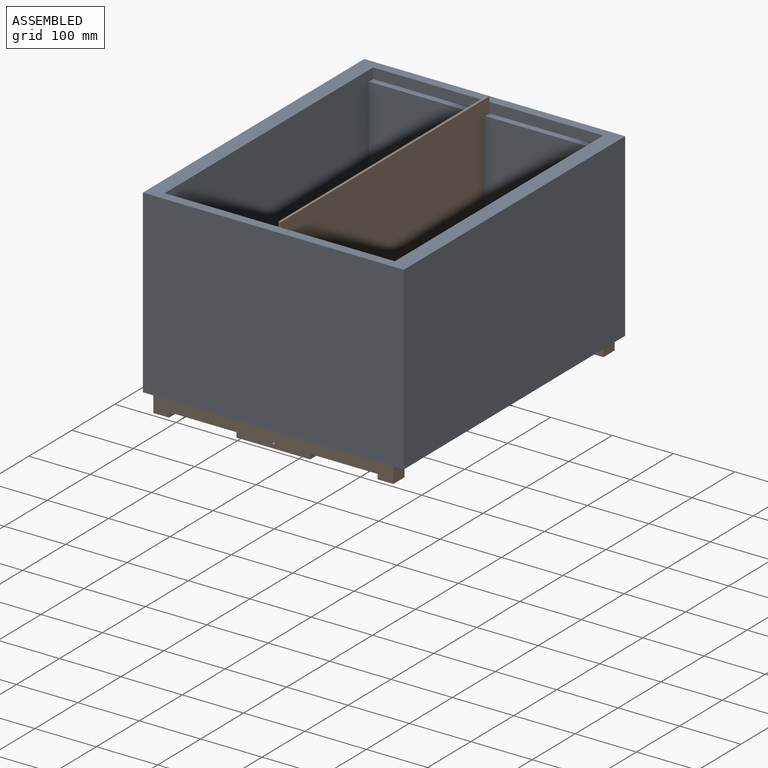
[diagram: assembled view]
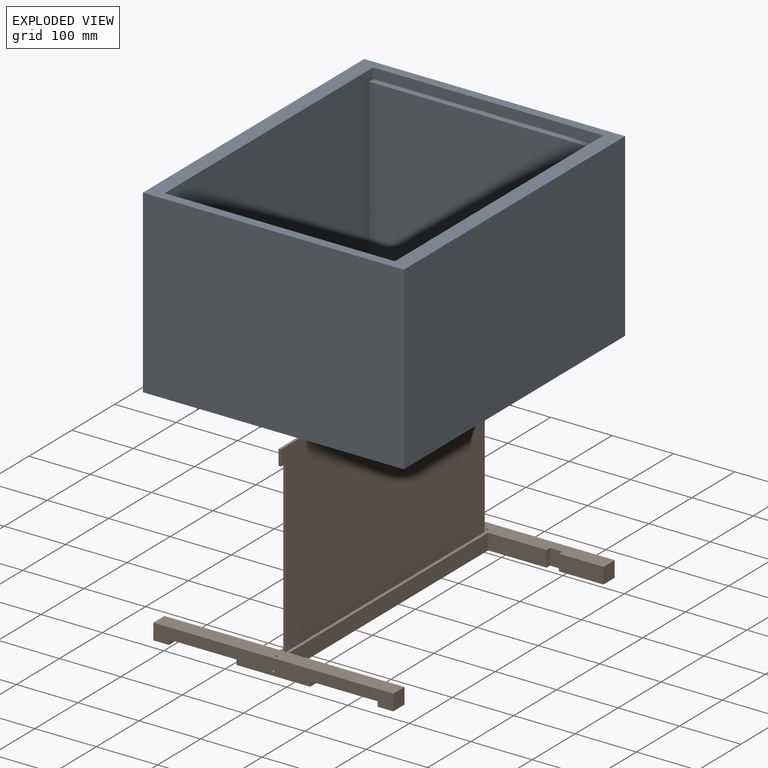
[diagram: exploded view]
GUIDED TOUR — MATED ASSEMBLY WITH SUBASSEMBLIES (Onshape document e3b92611a8aedb18f36058ed, AutoMate assembly e3b92611a8aedb18f36058ed_683d26e4b60991a36d9101ab_3c17a1db58b4eb7dbf458547_default)

This assembly has 8 component occurrences arranged in 2 top-level units: 0 individual components plus 2 subassemblies (S0, S1). The tour has two levels: first the top level, where each subassembly is treated as one rigid unit; then each subassembly is toured internally in its own section (nesting deeper than one subassembly level is flattened into its subassembly's section).

Components are labeled P0..P7 across the whole record; subassembly units are labeled S0..S1. A mate is a constraint between two units; its type names the relative motion it leaves free:
  FASTENED — locks the two components together rigidly (no relative motion).
Axis/direction vectors are unit vectors and 'through' points are millimeter coordinates, both in the assembly's world frame.

TOP-LEVEL MATES (between units; each subassembly's internal mates are listed in its own section)
  1. FASTENED "Fastened 1": S1 <-> S0, direction (0.000, 0.000, 1.000) through (-521.05, 214.26, 219.80) mm

TOP-LEVEL ASSEMBLY ORDER
  1. S0 — the base component [order heuristic]
  2. S1 [order heuristic]
Order-tag legend:
  [order heuristic] — this assembly is geometrically interlocked (no collision-free removal order exists), so components are listed in mate-graph order; insertion feasibility is not verified.

Of the 8 component occurrences, 5 carry the full construction recipe — the FeatureScript program that regenerates the part's solid from scratch; the rest are supplied as boundary geometry only. Each toured unit is shown spotlighted twice — assembled, then exploded with a leader line back to its socket (green = recipe-attached component, orange = geometry-only, blue = subassembly unit; the rest desaturated gray).
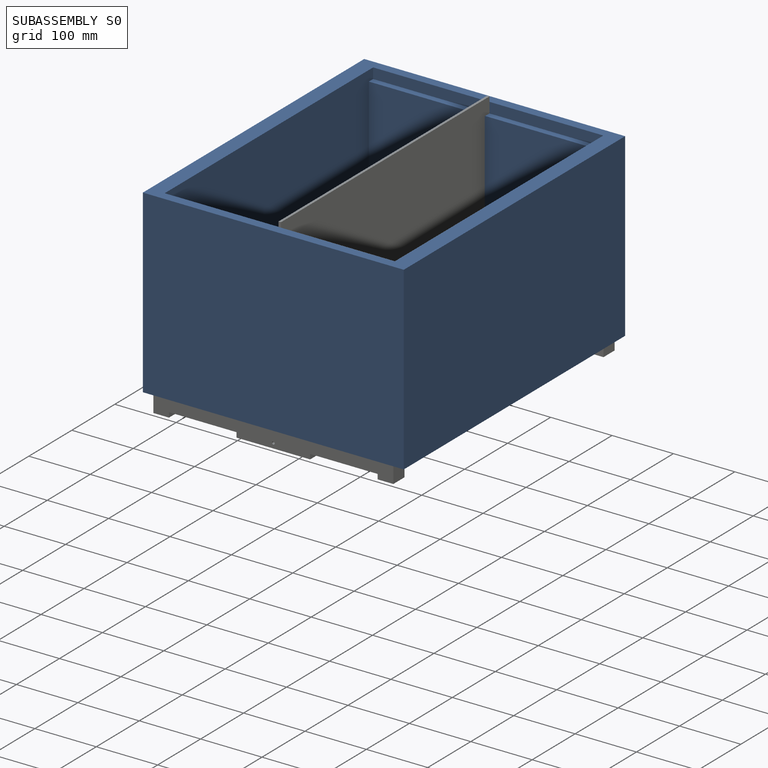
[diagram: subassembly S0 — assembled]
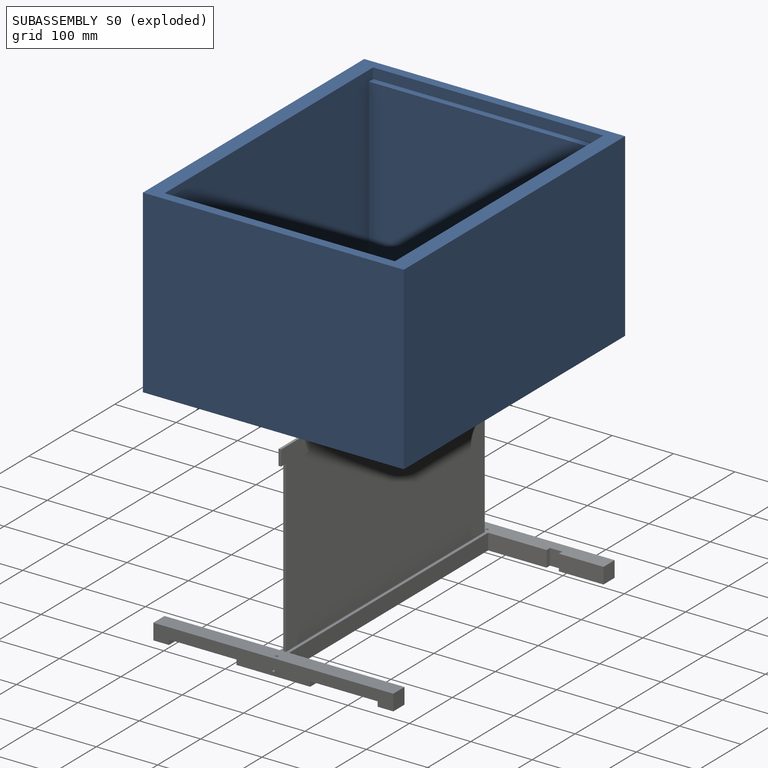
[diagram: subassembly S0 — exploded]
SUBASSEMBLY S0 — 4 components (P0, P4, P5, P7), of which 4 recipe-attached; toured below.
Held by: FASTENED mate "Fastened 1" to S1.
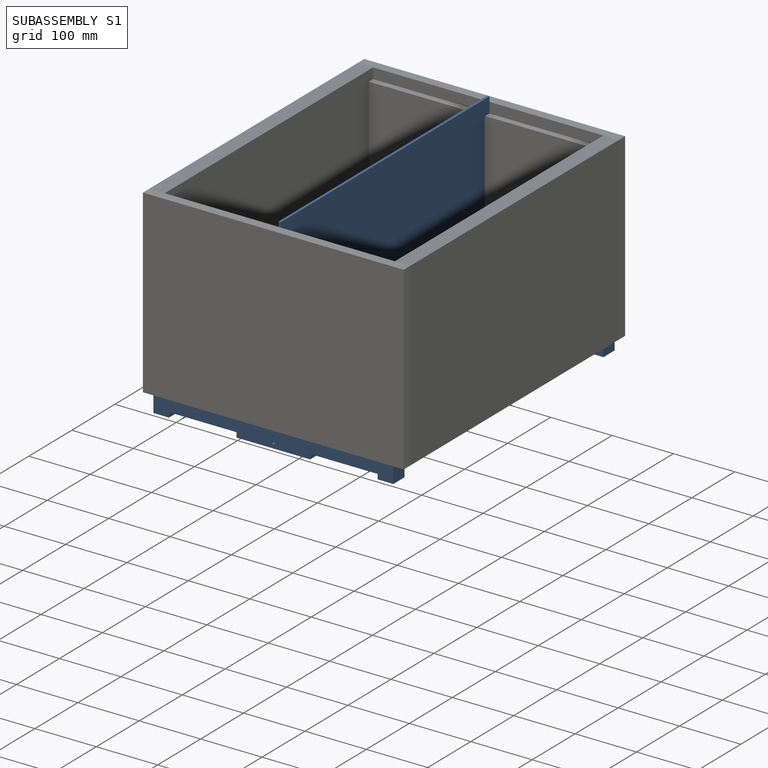
[diagram: subassembly S1 — assembled]
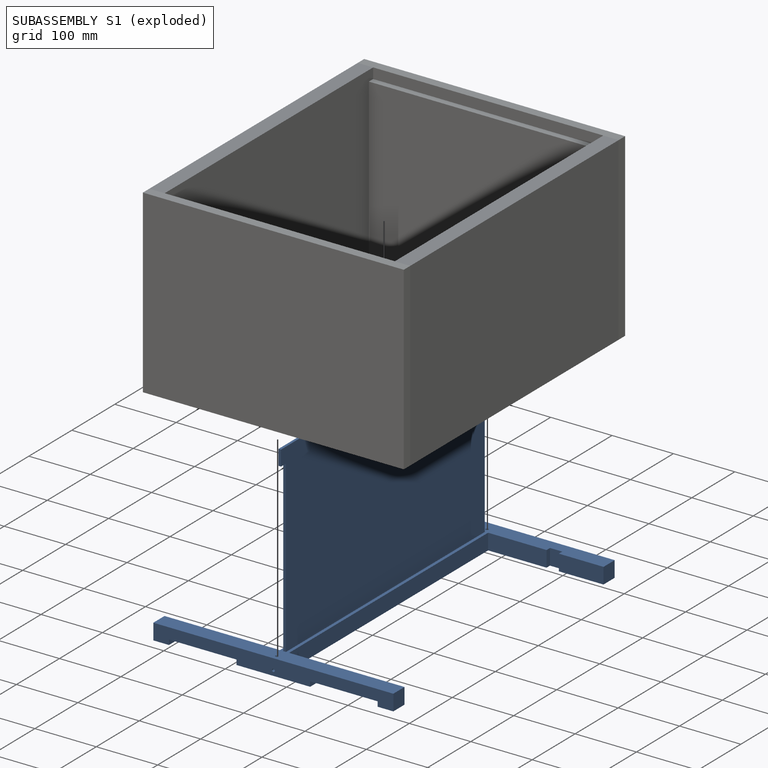
[diagram: subassembly S1 — exploded]
SUBASSEMBLY S1 — 4 components (P1, P2, P3, P6), of which 1 recipe-attached; toured below.
Held by: FASTENED mate "Fastened 1" to S0.
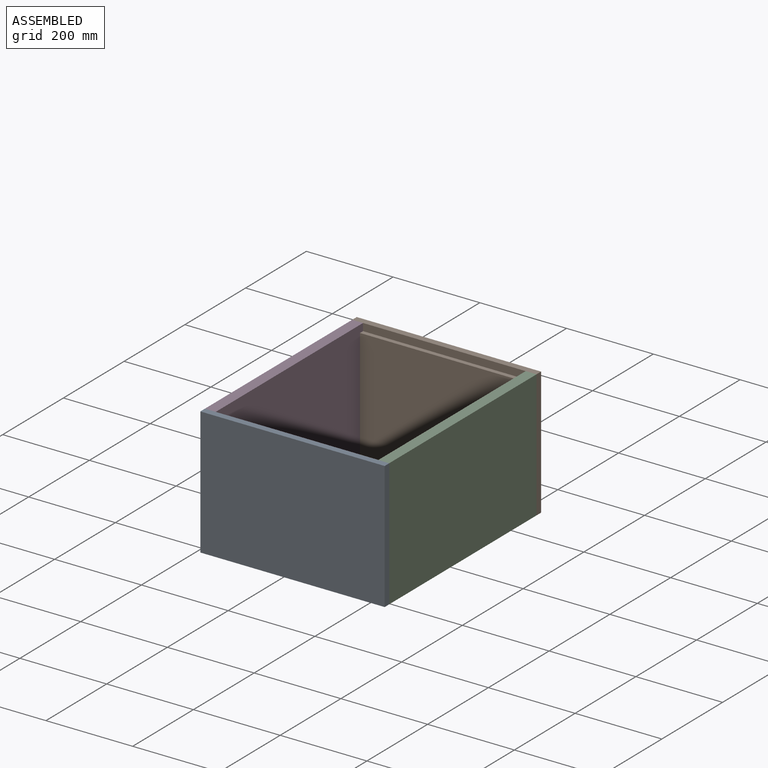
[diagram: subassembly S0 — assembled view]
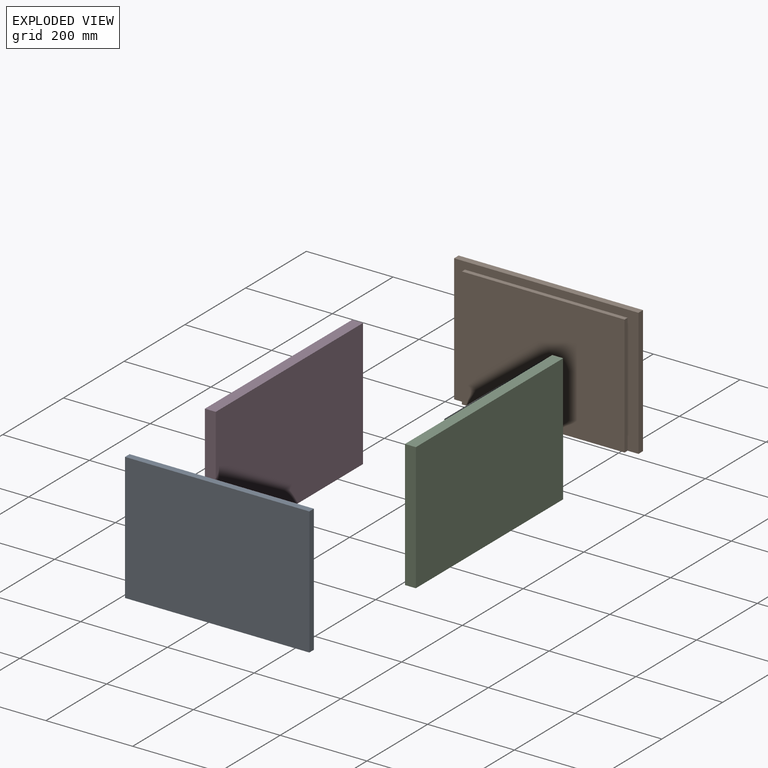
[diagram: subassembly S0 — exploded view]
SUBASSEMBLY S0 TOUR — 4 components, shown here in isolation at its own camera.

INTERNAL MATES
  1. FASTENED "Fastened 3": P5 <-> P4, direction (0.000, 0.000, -1.000) through (-321.05, 199.26, 219.80) mm
  2. FASTENED "Fastened 4": P0 <-> P5, direction (0.000, 0.000, -1.000) through (-321.05, -285.74, 219.80) mm
  3. FASTENED "Fastened 2": P7 <-> P4, direction (0.000, 0.000, -1.000) through (-721.05, 199.26, 219.80) mm
  4. FASTENED "Fastened 3": P5 <-> P4, direction (0.000, 0.000, -1.000) through (-321.05, 199.26, 219.80) mm
  5. FASTENED "Fastened 2": P7 <-> P4, direction (0.000, 0.000, -1.000) through (-721.05, 199.26, 219.80) mm
  6. FASTENED "Fastened 4": P0 <-> P5, direction (0.000, 0.000, -1.000) through (-321.05, -285.74, 219.80) mm

ASSEMBLY ORDER (within the subassembly)
  1. P7 — the base component [order verified]
  2. P0 [order verified]
  3. P5 [order verified]
  4. P4 [order verified]
(P0, P4 verified with a relaxed clearance tolerance: the source model stores slight part interference there.)
Order-tag legend:
  [order verified] — this step's position reverses a verified removal order: the component was checked to insert without passing through the ones already placed.
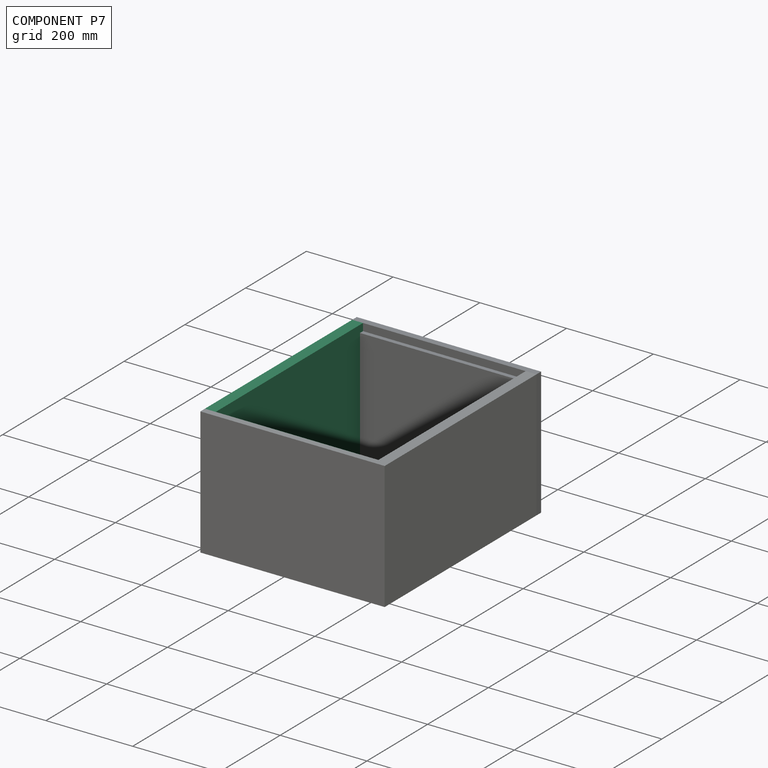
[diagram: component P7 — assembled]
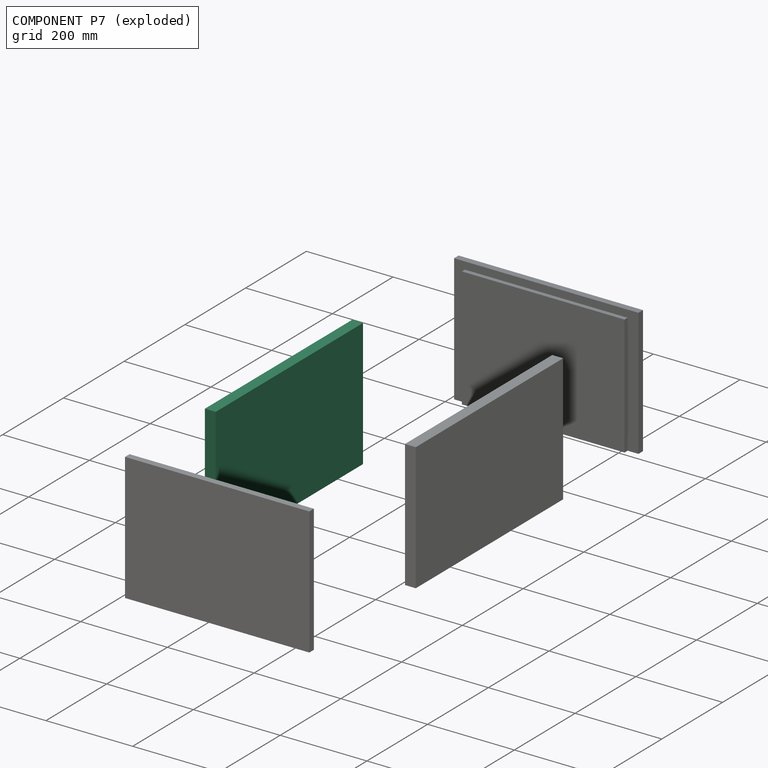
[diagram: component P7 — exploded]
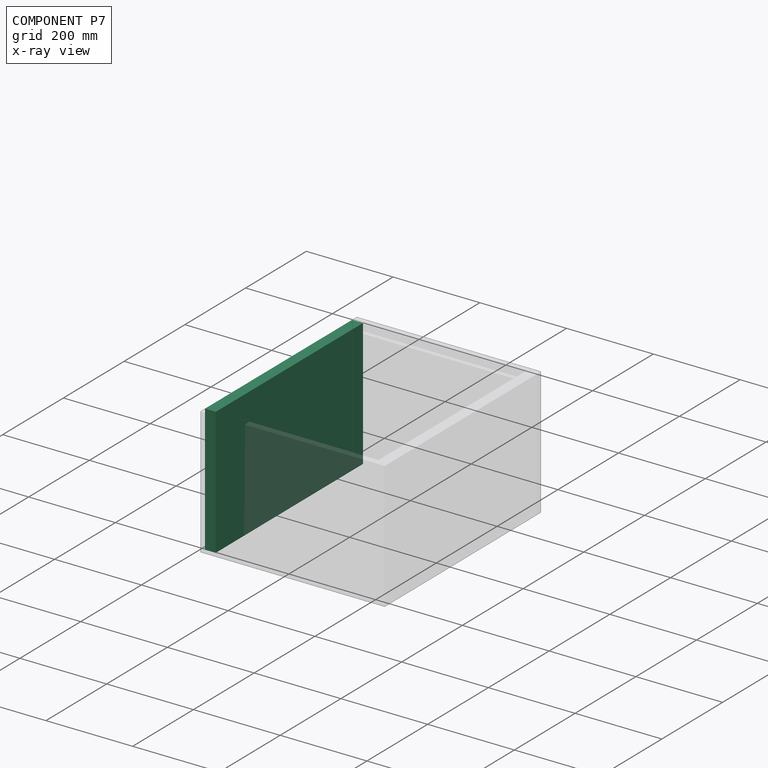
[diagram: component P7 — x-ray view]
COMPONENT P7 — same part as P5 (CADFS 00756730); its construction recipe is shown at P5.
Held by: FASTENED mate "Fastened 2" to P4; FASTENED mate "Fastened 2" to P4.
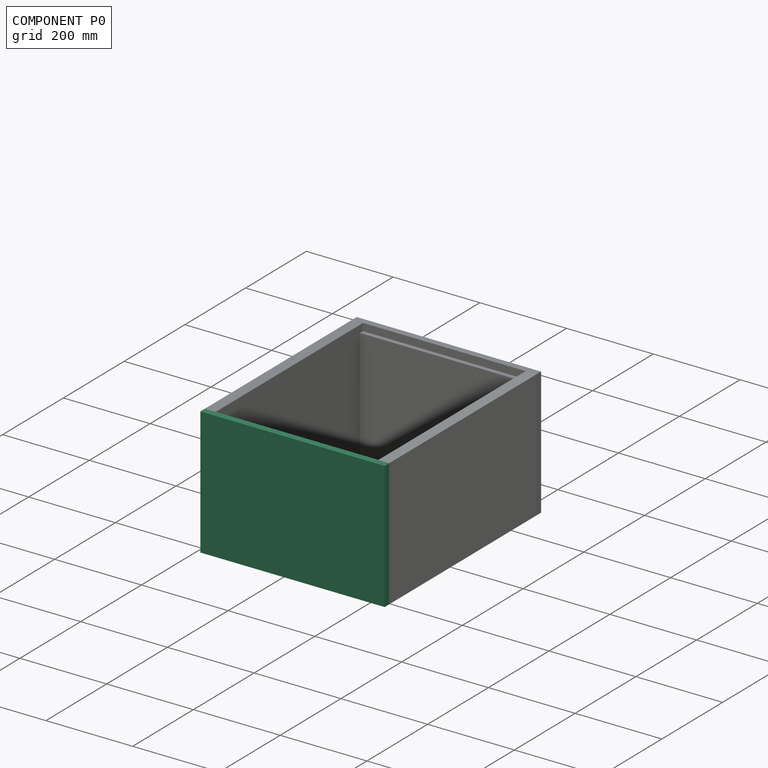
[diagram: component P0 — assembled]
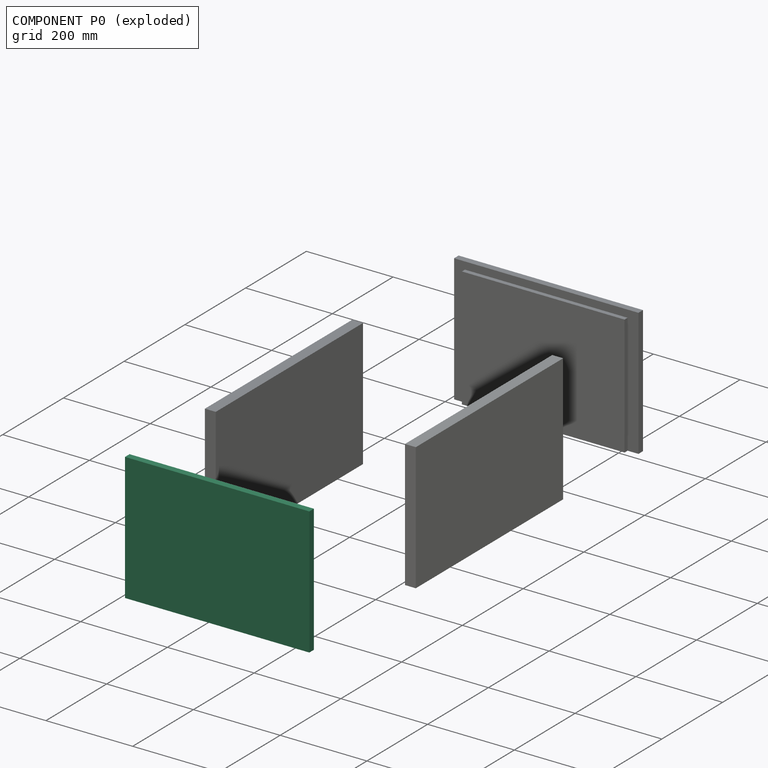
[diagram: component P0 — exploded]
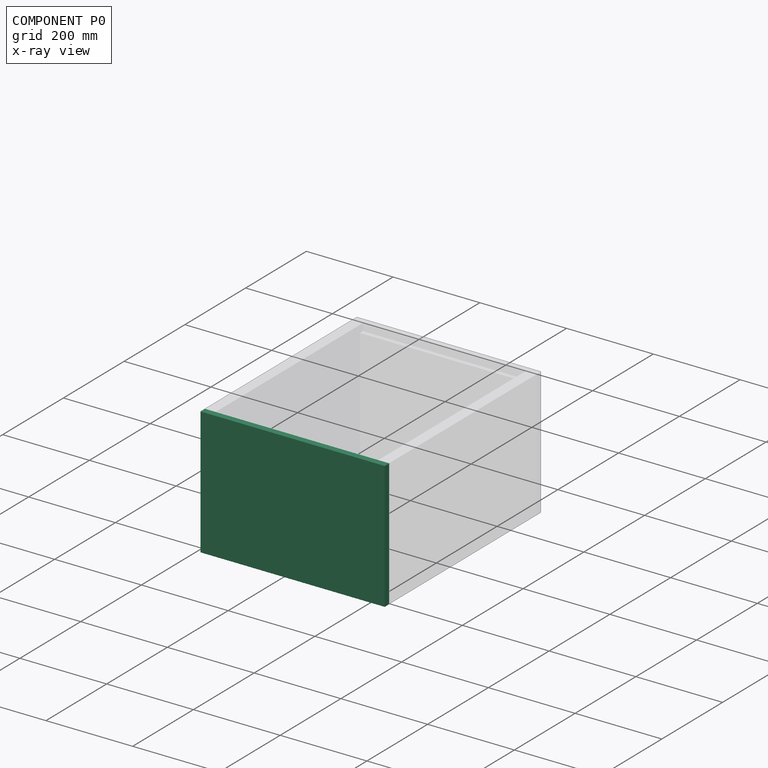
[diagram: component P0 — x-ray view]
COMPONENT P0 — recipe-attached (CADFS 00756731, mesh-verified: the recipe's output STEP matches this component's geometry to below the mesh-comparison resolution (tessellation chordal tolerance ~0.776 mm)).
Held by: FASTENED mate "Fastened 4" to P5; FASTENED mate "Fastened 4" to P5.
Construction recipe (FeatureScript — the CAD program that rebuilds this solid; sketch coordinates are in the units given by the * unit suffixes, e.g. mm):

FeatureScript 1913;
import(path : "onshape/std/geometry.fs", version : "1913.0");
import(path : "onshape/std/common.fs", version : "1913.0");
const mm = millimeter;
const VERTEX = EntityType.VERTEX;
const EDGE = EntityType.EDGE;
const FACE = EntityType.FACE;
const BODY = EntityType.BODY;
function v(x, y){return vector(x, y);}
function OD(order){return orderDisambiguation(order);}
function OSD(set){return originalSetDisambiguation(set);}
function TD(topology){return topologyDisambiguation(topology);}
function TDD(query){return trueDependencyDisambiguation(query);}
function sQuery(a, b, c) {return sketchEntityQuery(a, b, c);}

annotation { "Feature Type Name" : "Feature", "Feature Type Description" : "" }
export const myFeature = defineFeature(function(context is Context, id is Id, definition is map)
    precondition{}
    {
        {
            var Q0;
            Q0=qCreatedBy(makeId("Front.planeOp"),FACE);
            var sketch = newSketch(context, id + "F0", { "sketchPlane" : qUnion([Q0])});
            skLineSegment(sketch, "E0.bottom", {"start": v(-212.5, 294) * mm, "end": v(212.5, 294) * mm});
            skLineSegment(sketch, "E0.top", {"start": v(-212.5, 0) * mm, "end": v(212.5, 0) * mm});
            skLineSegment(sketch, "E0.left", {"start": v(-212.5, 294) * mm, "end": v(-212.5, 0) * mm});
            skLineSegment(sketch, "E0.right", {"start": v(212.5, 294) * mm, "end": v(212.5, 0) * mm});
            skSolve(sketch);
        }
        {
            var Q0;
            Q0 = qSketchRegion(id + "F0", true);
            extrude(context, id + "F1", {"entities" : qUnion([Q0]), "depth" : 15 * mm, "offsetDistance" : 25 * mm});
        }
        {
            var Q0;
            Q0=makeQuery(id+"F1.opExtrude","CAP_FACE",FACE,{"disambiguationData":[OSD([sQuery(id+"F0.wireOp",EDGE,"E0.bottom"),sQuery(id+"F0.wireOp",EDGE,"E0.top"),sQuery(id+"F0.wireOp",EDGE,"E0.left"),sQuery(id+"F0.wireOp",EDGE,"E0.right")])],"isStart":false});
            var sketch = newSketch(context, id + "F2", { "sketchPlane" : qUnion([Q0])});
            skLineSegment(sketch, "E1.bottom", {"start": v(-187.5, 277) * mm, "end": v(187.5, 277) * mm});
            skLineSegment(sketch, "E1.top", {"start": v(-187.5, 0) * mm, "end": v(187.5, 0) * mm});
            skLineSegment(sketch, "E1.left", {"start": v(-187.5, 277) * mm, "end": v(-187.5, 0) * mm});
            skLineSegment(sketch, "E1.right", {"start": v(187.5, 277) * mm, "end": v(187.5, 0) * mm});
            skSolve(sketch);
        }
        {
            var Q0;
            Q0 = qSketchRegion(id + "F2", true);
            extrude(context, id + "F3", {"entities" : qUnion([Q0]), "operationType" : NewBodyOperationType.ADD, "depth" : 10 * mm, "offsetDistance" : 25 * mm});
        }
    });
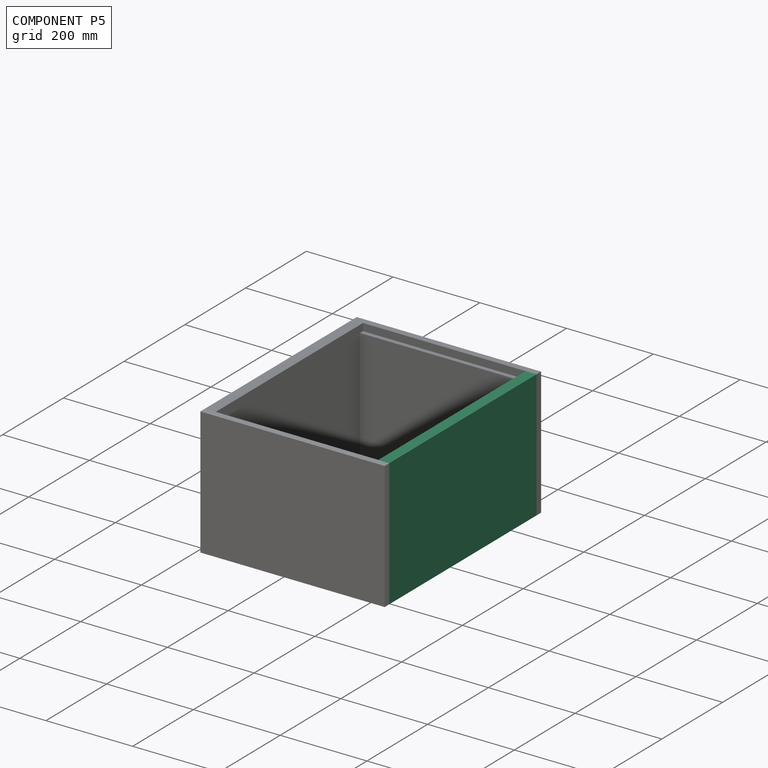
[diagram: component P5 — assembled]
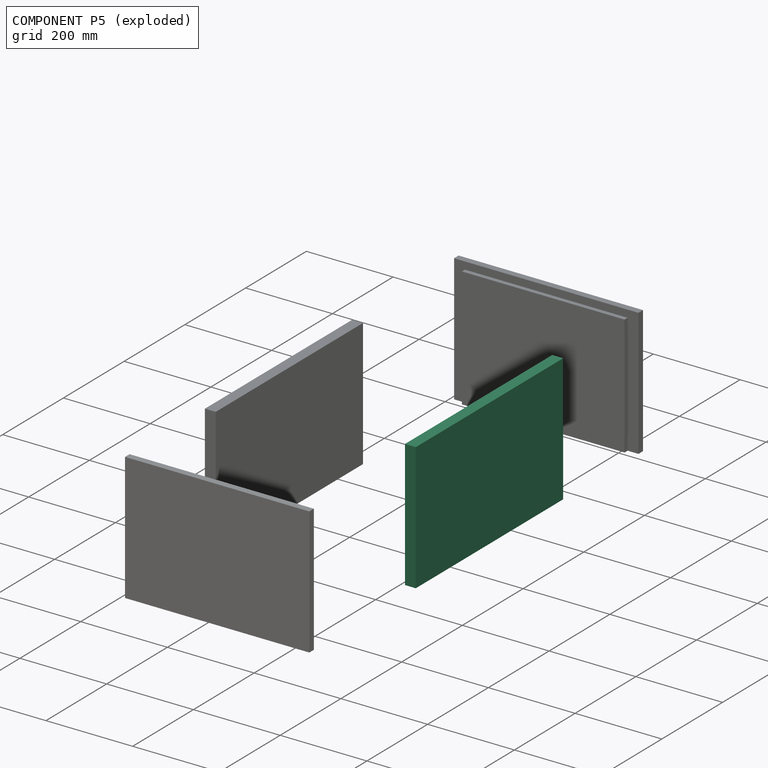
[diagram: component P5 — exploded]
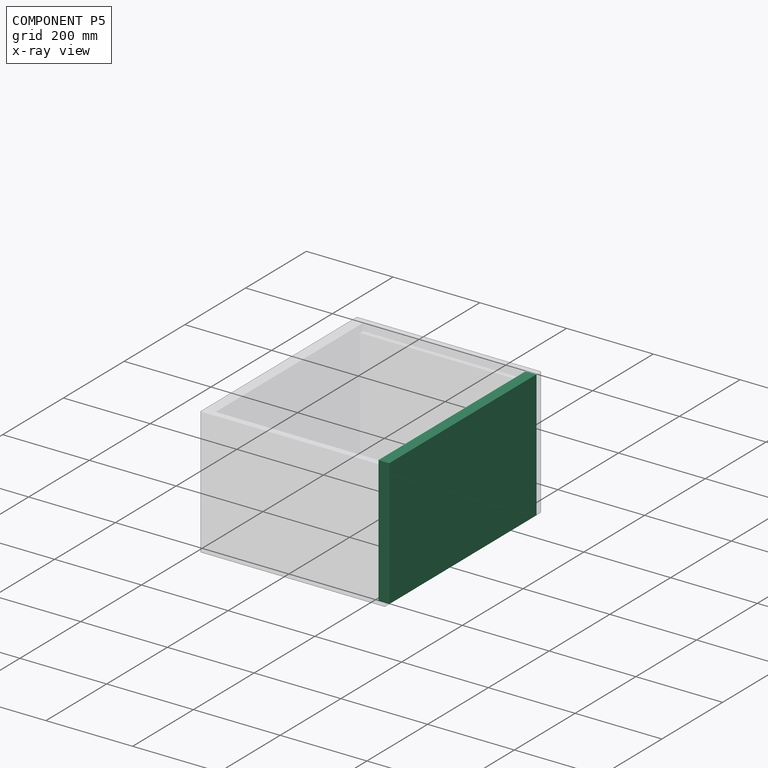
[diagram: component P5 — x-ray view]
COMPONENT P5 — recipe-attached (CADFS 00756730, mesh-verified: the recipe's output STEP matches this component's geometry to below the mesh-comparison resolution (tessellation chordal tolerance ~0.852 mm)).
Held by: FASTENED mate "Fastened 3" to P4; FASTENED mate "Fastened 4" to P0; FASTENED mate "Fastened 3" to P4; FASTENED mate "Fastened 4" to P0.
Construction recipe (FeatureScript — the CAD program that rebuilds this solid; sketch coordinates are in the units given by the * unit suffixes, e.g. mm):

FeatureScript 1913;
import(path : "onshape/std/geometry.fs", version : "1913.0");
import(path : "onshape/std/common.fs", version : "1913.0");
const mm = millimeter;
const VERTEX = EntityType.VERTEX;
const EDGE = EntityType.EDGE;
const FACE = EntityType.FACE;
const BODY = EntityType.BODY;
function v(x, y){return vector(x, y);}
function OD(order){return orderDisambiguation(order);}
function OSD(set){return originalSetDisambiguation(set);}
function TD(topology){return topologyDisambiguation(topology);}
function TDD(query){return trueDependencyDisambiguation(query);}
function sQuery(a, b, c) {return sketchEntityQuery(a, b, c);}

annotation { "Feature Type Name" : "Feature", "Feature Type Description" : "" }
export const myFeature = defineFeature(function(context is Context, id is Id, definition is map)
    precondition{}
    {
        {
            var Q0;
            Q0=qCreatedBy(makeId("Front.planeOp"),FACE);
            var sketch = newSketch(context, id + "F0", { "sketchPlane" : qUnion([Q0])});
            skLineSegment(sketch, "E0.bottom", {"start": v(-242.5, 294) * mm, "end": v(242.5, 294) * mm});
            skLineSegment(sketch, "E0.top", {"start": v(-242.5, 0) * mm, "end": v(242.5, 0) * mm});
            skLineSegment(sketch, "E0.left", {"start": v(-242.5, 294) * mm, "end": v(-242.5, 0) * mm});
            skLineSegment(sketch, "E0.right", {"start": v(242.5, 294) * mm, "end": v(242.5, 0) * mm});
            skSolve(sketch);
        }
        {
            var Q0;
            Q0 = qSketchRegion(id + "F0", true);
            extrude(context, id + "F1", {"entities" : qUnion([Q0]), "depth" : 25 * mm, "offsetDistance" : 25 * mm});
        }
    });
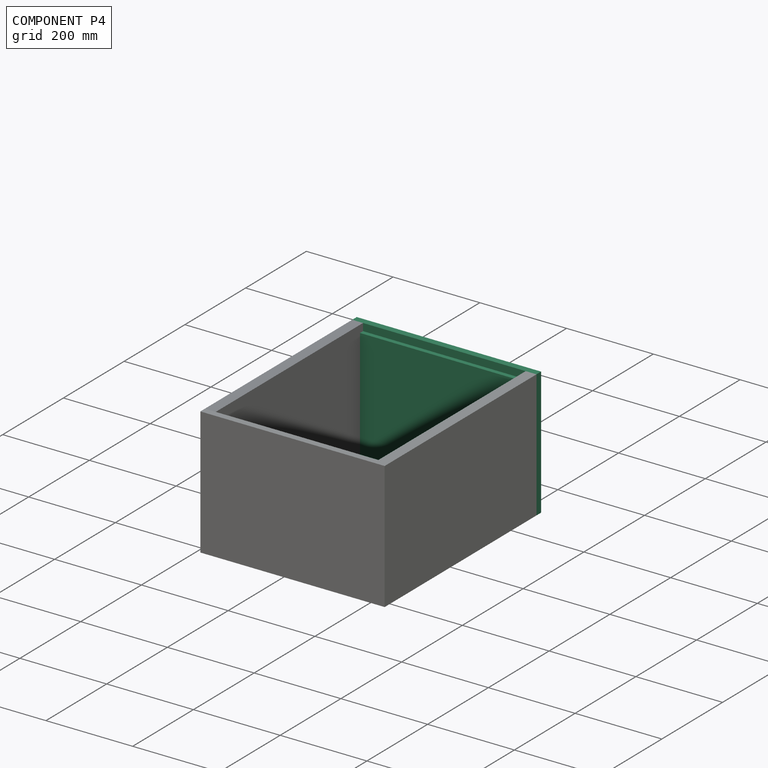
[diagram: component P4 — assembled]
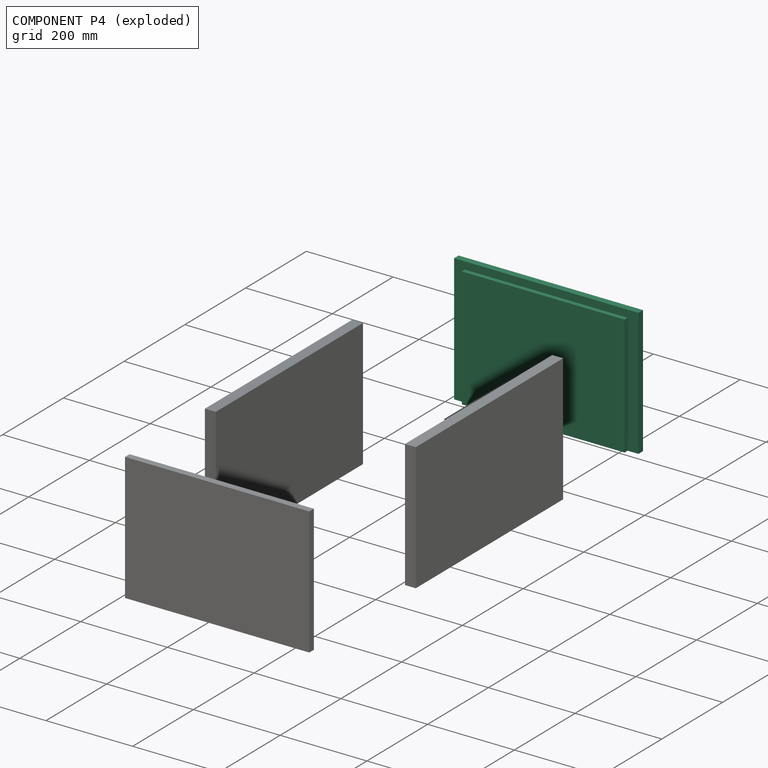
[diagram: component P4 — exploded]
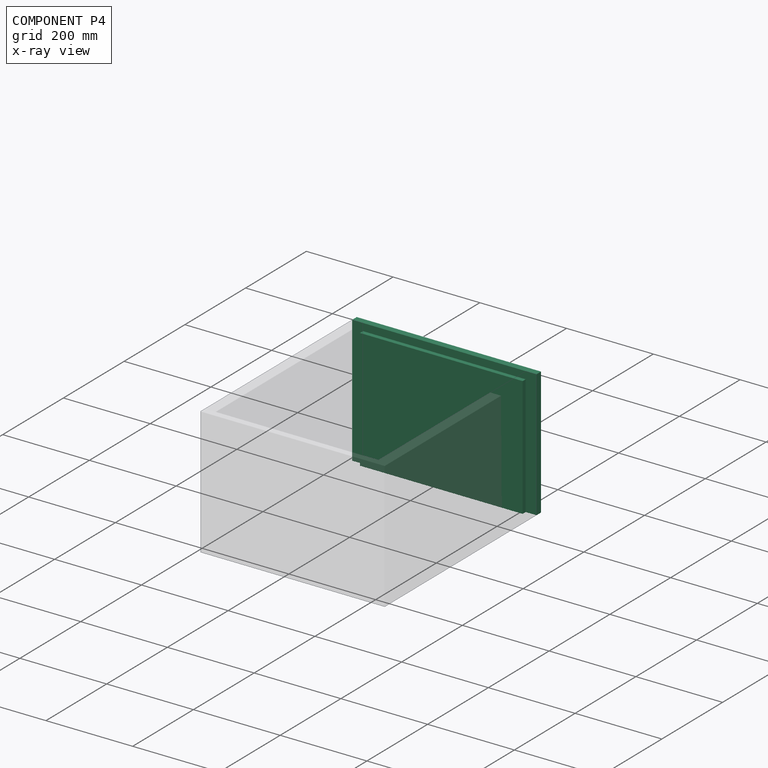
[diagram: component P4 — x-ray view]
COMPONENT P4 — same part as P0 (CADFS 00756731); its construction recipe is shown at P0.
Held by: FASTENED mate "Fastened 3" to P5; FASTENED mate "Fastened 2" to P7; FASTENED mate "Fastened 3" to P5; FASTENED mate "Fastened 2" to P7.
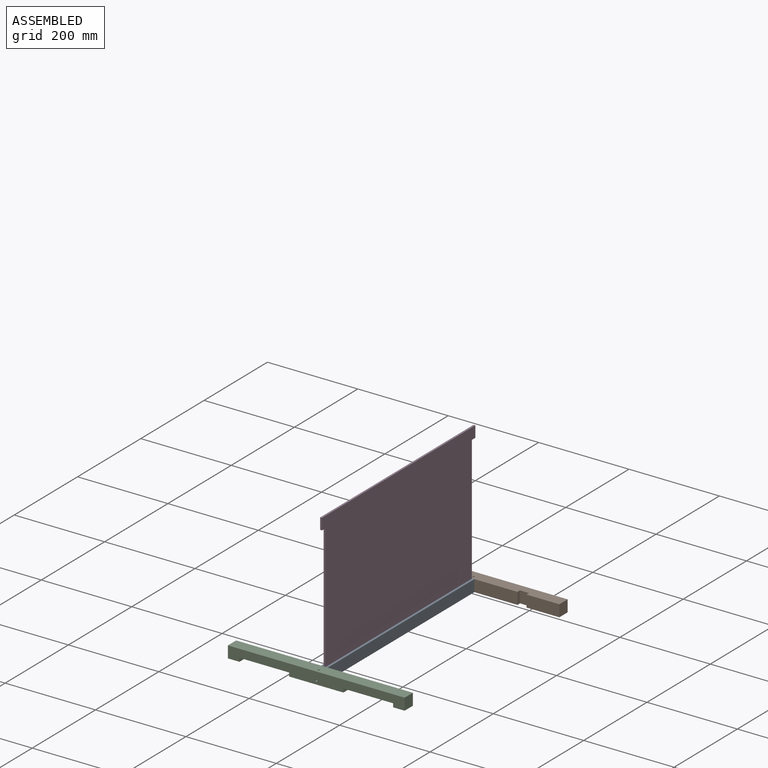
[diagram: subassembly S1 — assembled view]
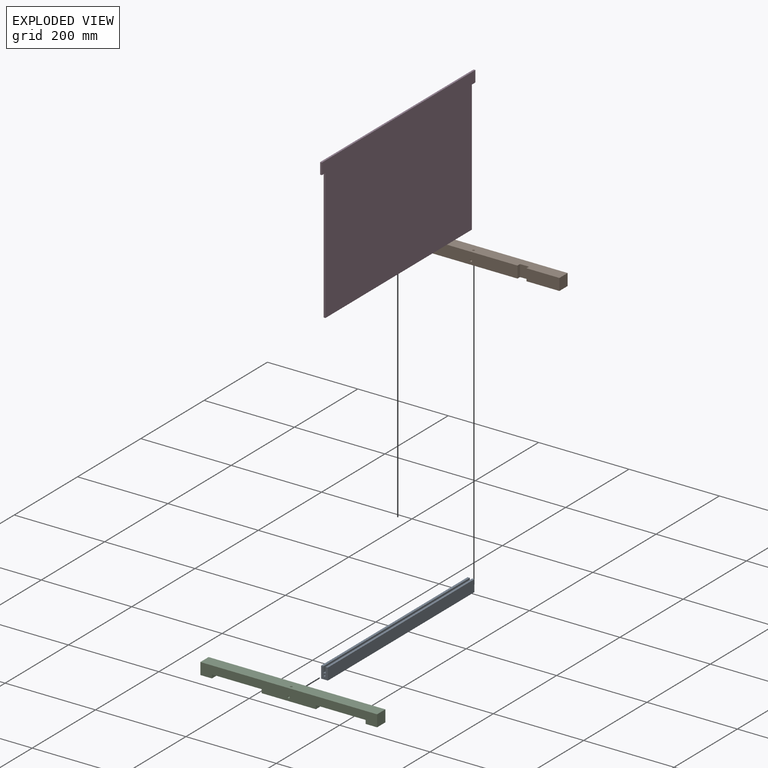
[diagram: subassembly S1 — exploded view]
SUBASSEMBLY S1 TOUR — 4 components, shown here in isolation at its own camera.

INTERNAL MATES
  1. FASTENED "Fastened 1": P2 <-> P1, direction (0.000, 0.000, -1.000) through (-521.05, 188.26, 193.80) mm
  2. FASTENED "Fastened 4": P6 <-> P1, direction (0.000, 0.000, -1.000) through (-521.05, -274.74, 206.80) mm
  3. FASTENED "Fastened 2": P1 <-> P3, direction (0.000, 0.000, -1.000) through (-521.05, -274.74, 193.80) mm
  4. FASTENED "Fastened 2": P1 <-> P3, direction (0.000, 0.000, -1.000) through (-521.05, -274.74, 193.80) mm
  5. FASTENED "Fastened 1": P2 <-> P1, direction (0.000, 0.000, -1.000) through (-521.05, 188.26, 193.80) mm
  6. FASTENED "Fastened 4": P6 <-> P1, direction (0.000, 0.000, -1.000) through (-521.05, -274.74, 206.80) mm

ASSEMBLY ORDER (within the subassembly)
  1. P1 — the base component [order verified]
  2. P6 [order verified]
  3. P3 [order verified]
  4. P2 [order verified]
Order-tag legend:
  [order verified] — this step's position reverses a verified removal order: the component was checked to insert without passing through the ones already placed.
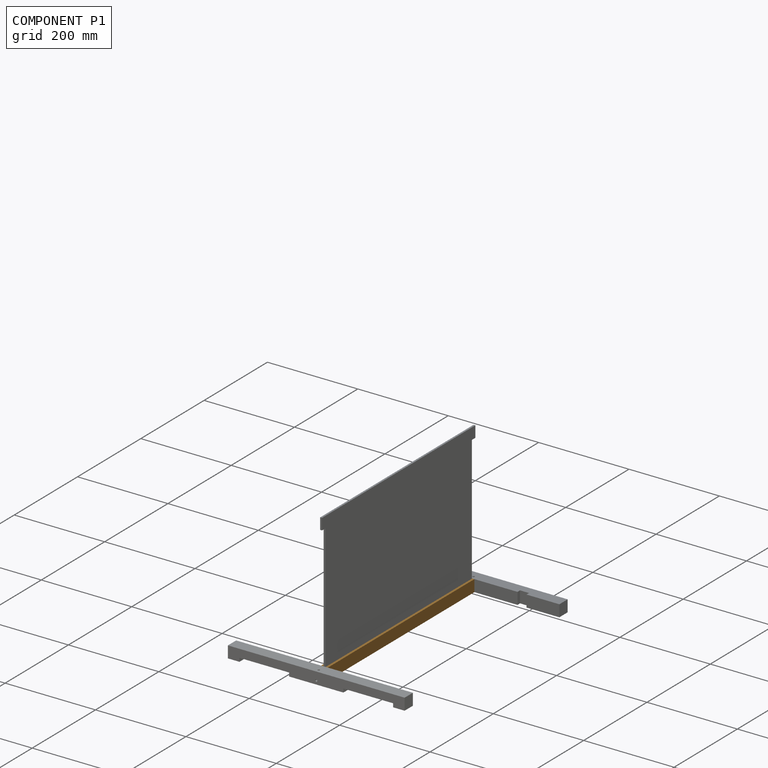
[diagram: component P1 — assembled]
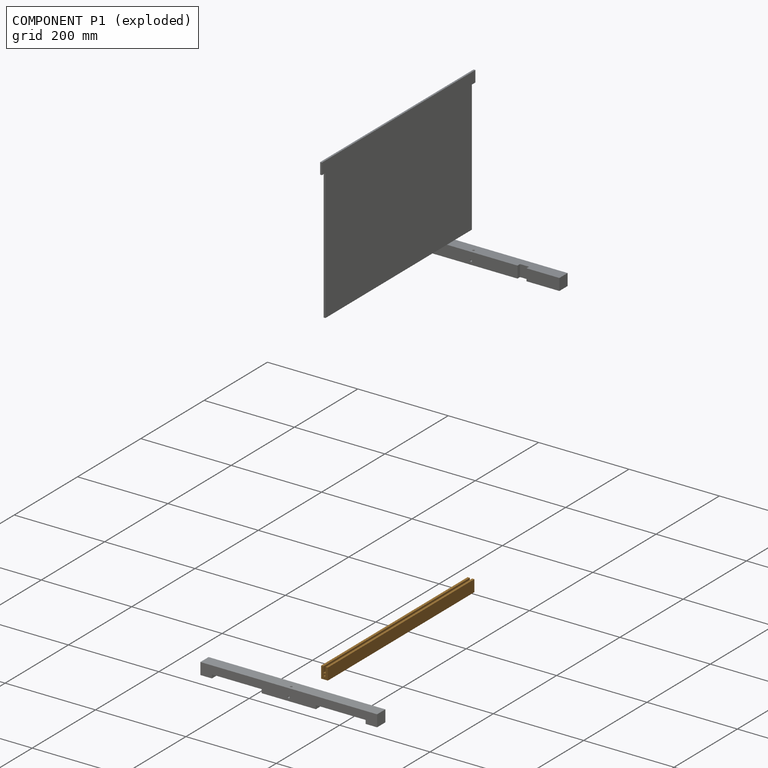
[diagram: component P1 — exploded]
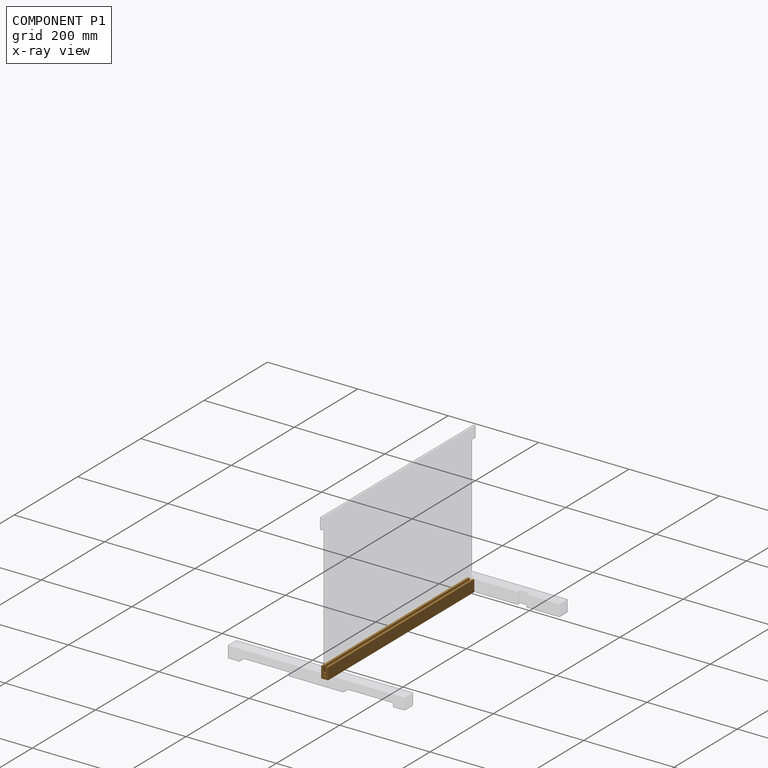
[diagram: component P1 — x-ray view]
COMPONENT P1 — geometry summary (no construction recipe available for this part):
  bounding box: 463.0 x 26.0 x 15.0 mm
  B-rep topology: 1 solid, 14 faces, 66 edges
  volume: 150088 mm^3 (83% of its bounding box)
  symmetry: 2-fold rotationally symmetric about the z axis; mirror-symmetric across its x mid-plane, y mid-plane
Held by: FASTENED mate "Fastened 1" to P2; FASTENED mate "Fastened 4" to P6; FASTENED mate "Fastened 2" to P3; FASTENED mate "Fastened 2" to P3; FASTENED mate "Fastened 1" to P2; FASTENED mate "Fastened 4" to P6.
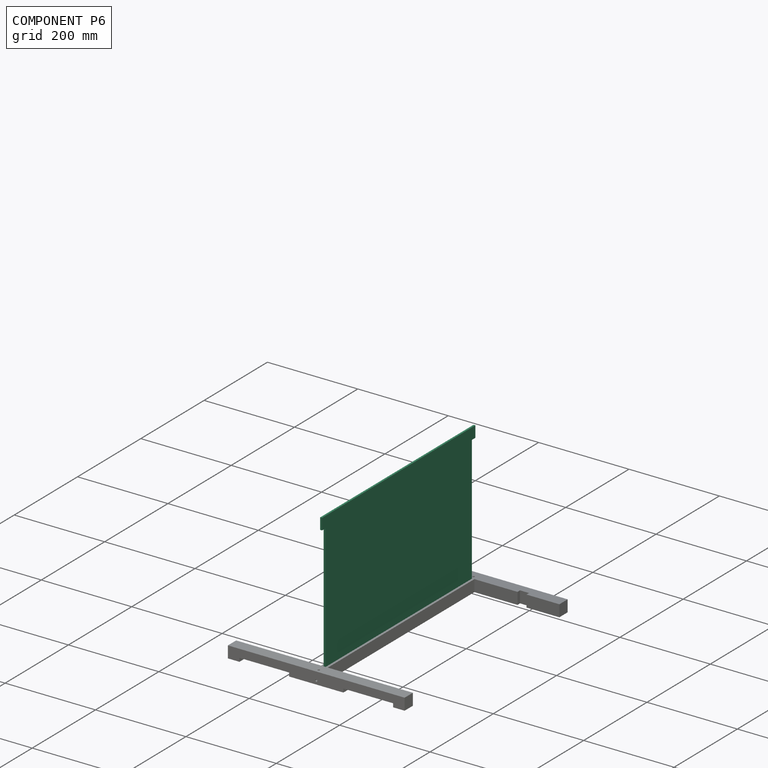
[diagram: component P6 — assembled]
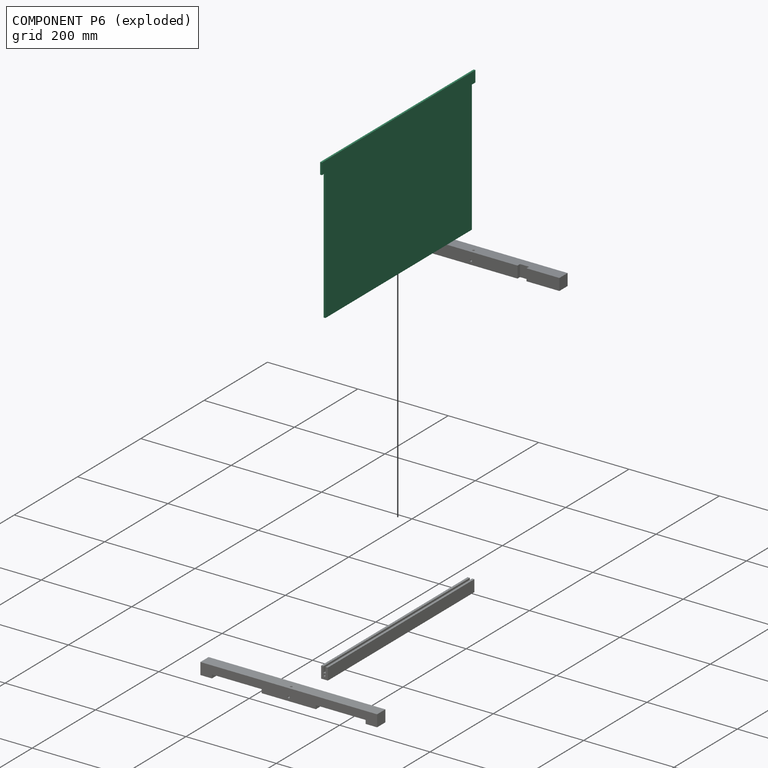
[diagram: component P6 — exploded]
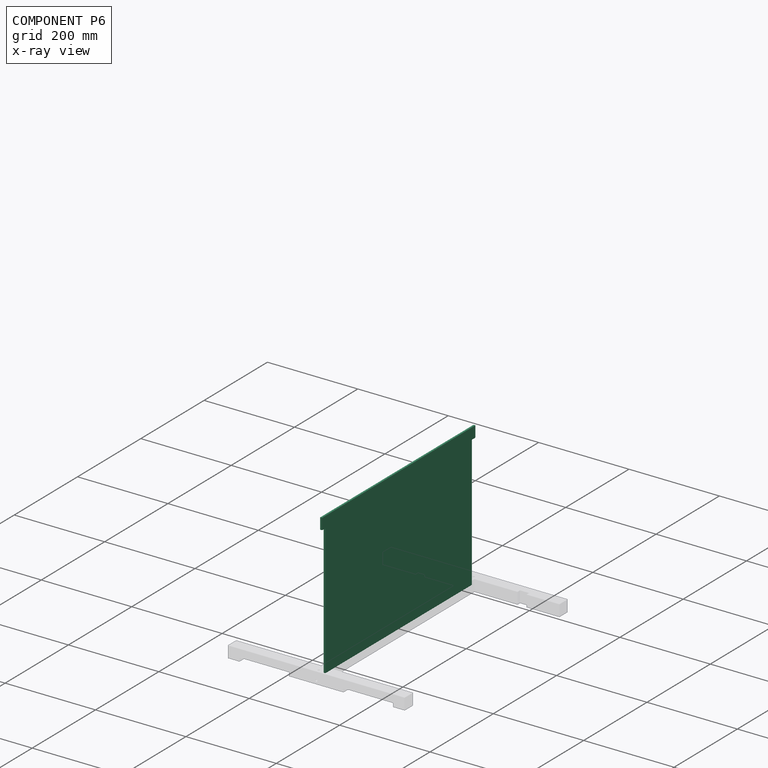
[diagram: component P6 — x-ray view]
COMPONENT P6 — recipe-attached (CADFS 00756729, mesh-verified: the recipe's output STEP matches this component's geometry to below the mesh-comparison resolution (tessellation chordal tolerance ~0.867 mm)).
Held by: FASTENED mate "Fastened 4" to P1; FASTENED mate "Fastened 4" to P1.
Construction recipe (FeatureScript — the CAD program that rebuilds this solid; sketch coordinates are in the units given by the * unit suffixes, e.g. mm):

FeatureScript 1913;
import(path : "onshape/std/geometry.fs", version : "1913.0");
import(path : "onshape/std/common.fs", version : "1913.0");
const mm = millimeter;
const VERTEX = EntityType.VERTEX;
const EDGE = EntityType.EDGE;
const FACE = EntityType.FACE;
const BODY = EntityType.BODY;
function v(x, y){return vector(x, y);}
function OD(order){return orderDisambiguation(order);}
function OSD(set){return originalSetDisambiguation(set);}
function TD(topology){return topologyDisambiguation(topology);}
function TDD(query){return trueDependencyDisambiguation(query);}
function sQuery(a, b, c) {return sketchEntityQuery(a, b, c);}

annotation { "Feature Type Name" : "Feature", "Feature Type Description" : "" }
export const myFeature = defineFeature(function(context is Context, id is Id, definition is map)
    precondition{}
    {
        {
            var Q0;
            Q0=qCreatedBy(makeId("Front.planeOp"),FACE);
            var sketch = newSketch(context, id + "F0", { "sketchPlane" : qUnion([Q0])});
            skLineSegment(sketch, "E0", {"start": v(242.5, 315) * mm, "end": v(-242.5, 315) * mm});
            skLineSegment(sketch, "E1", {"start": v(-242.5, 315) * mm, "end": v(-242.5, 290) * mm});
            skLineSegment(sketch, "E2", {"start": v(-242.5, 290) * mm, "end": v(-231.5, 290) * mm});
            skLineSegment(sketch, "E3", {"start": v(-231.5, 290) * mm, "end": v(-231.5, 0) * mm});
            skLineSegment(sketch, "E4", {"start": v(-231.5, 0) * mm, "end": v(231.5, 0) * mm});
            skLineSegment(sketch, "E5", {"start": v(231.5, 0) * mm, "end": v(231.5, 290) * mm});
            skLineSegment(sketch, "E6", {"start": v(231.5, 290) * mm, "end": v(242.5, 290) * mm});
            skLineSegment(sketch, "E7", {"start": v(242.5, 290) * mm, "end": v(242.5, 315) * mm});
            skSolve(sketch);
        }
        {
            var Q0;
            Q0 = qSketchRegion(id + "F0", true);
            extrude(context, id + "F1", {"entities" : qUnion([Q0]), "depth" : 4 * mm, "offsetDistance" : 25 * mm, "symmetric" : true});
        }
    });
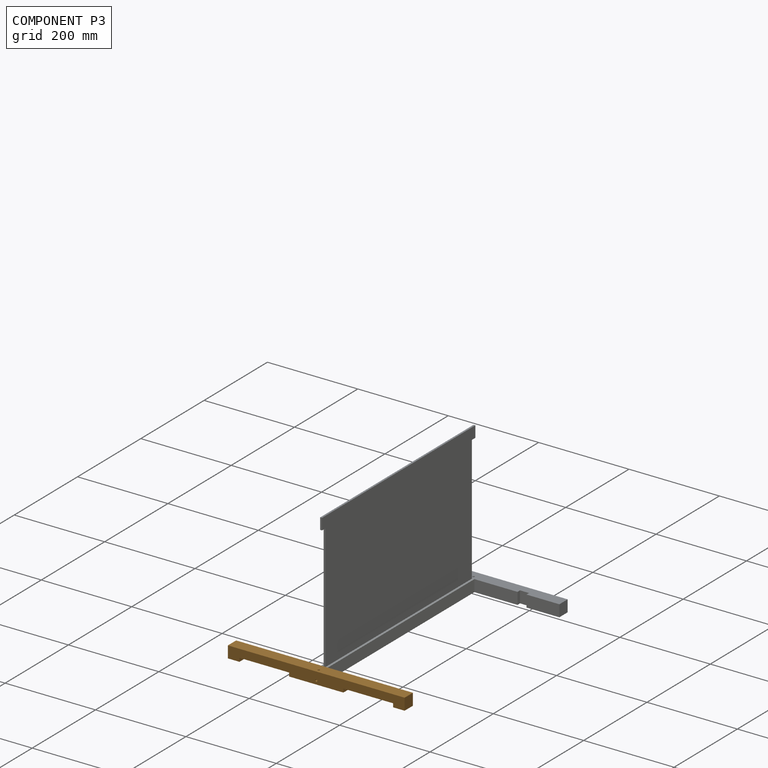
[diagram: component P3 — assembled]
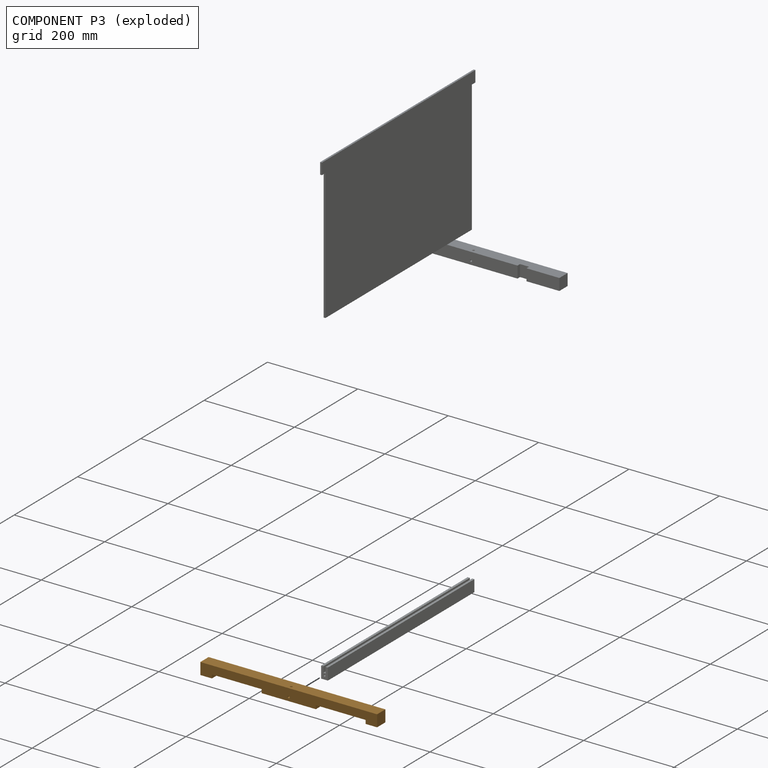
[diagram: component P3 — exploded]
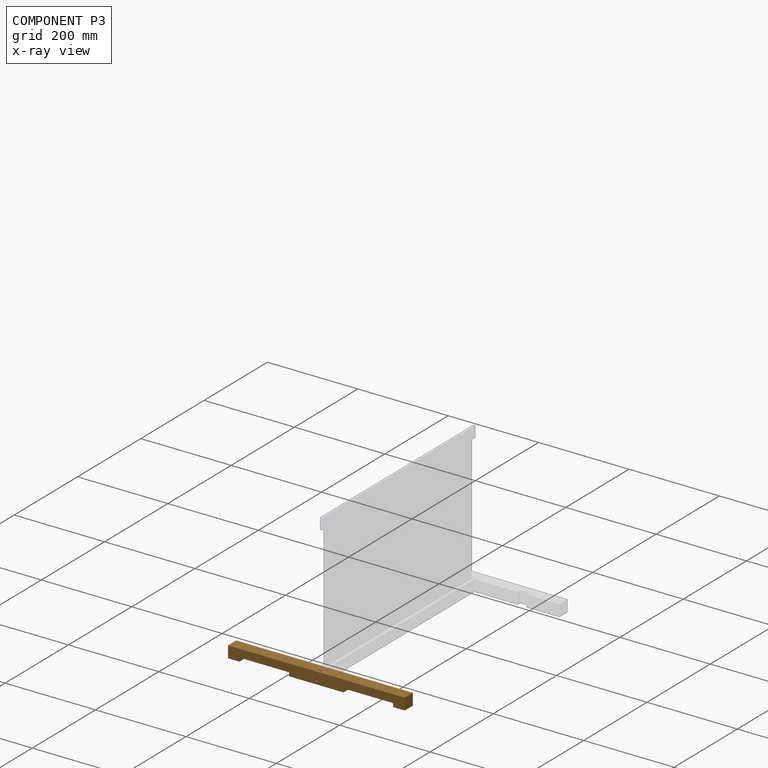
[diagram: component P3 — x-ray view]
COMPONENT P3 — geometry summary (no construction recipe available for this part):
  bounding box: 391.0 x 26.0 x 26.0 mm
  B-rep topology: 1 solid, 18 faces, 100 edges
  volume: 217790 mm^3 (82% of its bounding box)
  symmetry: mirror-symmetric across its x mid-plane
Held by: FASTENED mate "Fastened 2" to P1; FASTENED mate "Fastened 2" to P1.
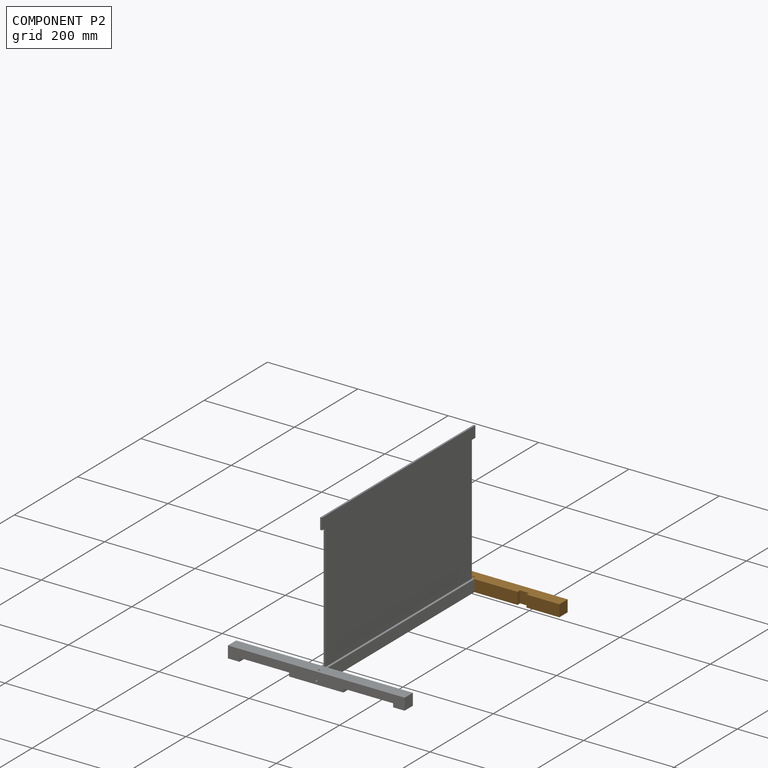
[diagram: component P2 — assembled]
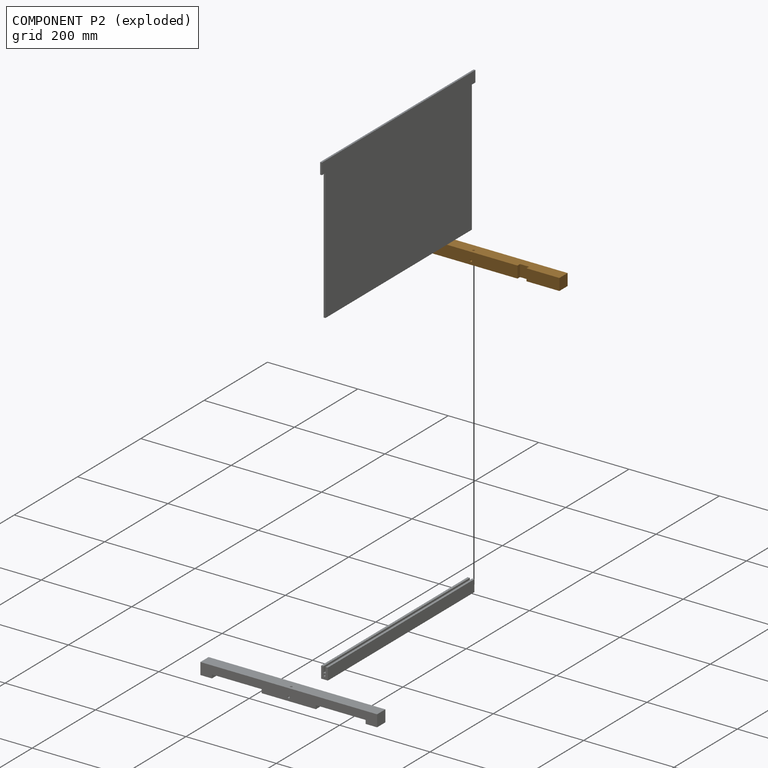
[diagram: component P2 — exploded]
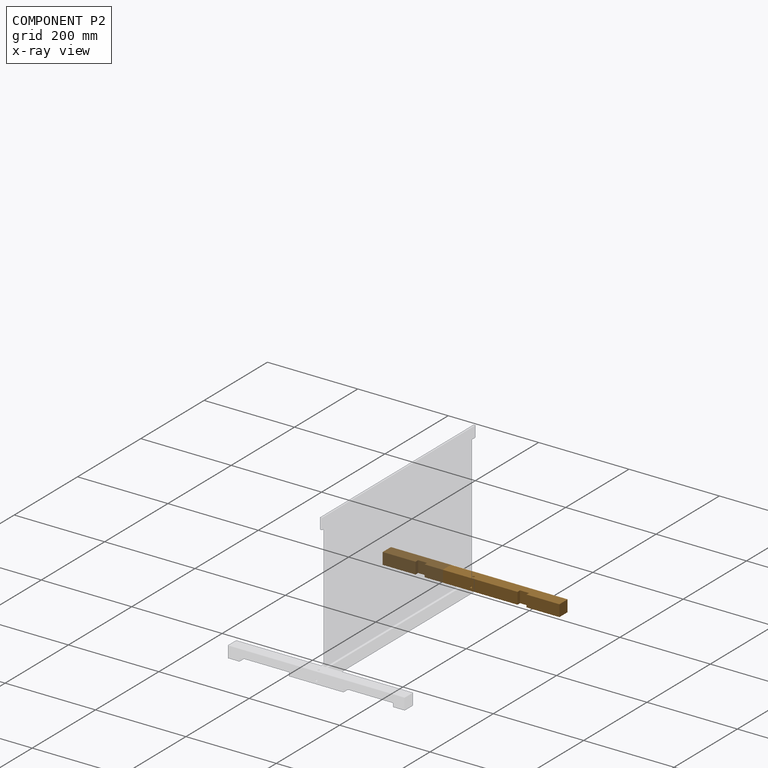
[diagram: component P2 — x-ray view]
COMPONENT P2 — geometry summary (no construction recipe available for this part):
  bounding box: 391.0 x 26.0 x 26.0 mm
  B-rep topology: 1 solid, 18 faces, 100 edges
  volume: 255230 mm^3 (97% of its bounding box)
  symmetry: mirror-symmetric across its x mid-plane
Held by: FASTENED mate "Fastened 1" to P1; FASTENED mate "Fastened 1" to P1.
PROVENANCE & LICENSES
Assembly (occurrences, transforms, mates, per-part STEP geometry): AutoMate dataset, Zenodo record 7776208, CC0.
Construction recipes: CADFS (HuggingFace VladPyatov/CADFS, CC-BY-4.0, layered over the ABC dataset), FeatureScript reconstruction programs keyed by ABC model id.
Join: ABC meta listings map ABC model id -> Onshape documentId; within a shared document, parts are matched by geometric signature (bounding-box dims + volume at 0.1% relative tolerance, exact B-rep face/solid counts).
Verification: 5 of this assembly's 8 components carry a recipe attachment, and every attachment is mesh-verified: the CADFS STEP and the AutoMate member STEP were compared as meshes in their shared local frame (symmetric sampled-point-to-mesh distance); worst across the 5 attachments: below the mesh-comparison resolution (tessellation chordal tolerance ~0.867 mm) on a 578 mm part.
Renders: orthographic iso camera (az 35 / el 25); the floor grid conveys scale (grid pitch printed in each image; no ruler). In the exploded view each component is displaced by its stored offset vector: the offsets alone carry the explosion direction (mate normal/axis signs are not orientation cues and do not encode it), and separation distances are assigned per mate-chain, not proportionally to assembly-order depth.
